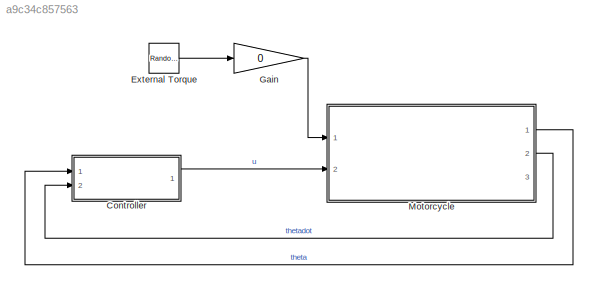
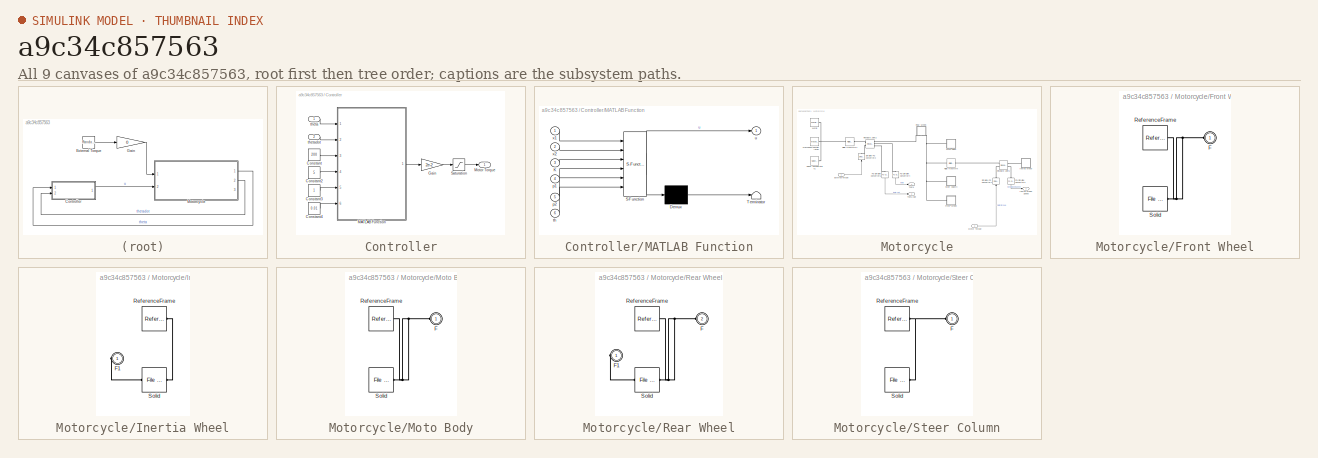
[diagram: thumbnail index - all 9 canvases of the model, root first then tree order]
MODEL slx_a9c34c857563
KIND model
CONFIG AbsTol = auto
CONFIG EnableMultiTasking = on
CONFIG FixedStep = auto
CONFIG MaxStep = 0.001
CONFIG MinStep = auto
CONFIG PreLoadFcn = moto_cad_data\n\ntheta0 = 1;\nthetadot0 = 0;
CONFIG RelTol = 1e-3
CONFIG SampleTimeConstraint = Unconstrained
CONFIG SolverName = ode45
CONFIG StartTime = 0.0
CONFIG StopTime = 10
BLOCK [SubSystem] Controller
  Ports = [2, 1]
  RequestExecContextInheritance = off
BLOCK [Constant] Controller/Constant
  Value = 200
BLOCK [Constant] Controller/Constant2
  Value = 5
BLOCK [Constant] Controller/Constant3
  NameLocation = right
BLOCK [Constant] Controller/Constant4
  Value = 0.01
BLOCK [Gain] Controller/Gain
  Gain = 2e-2
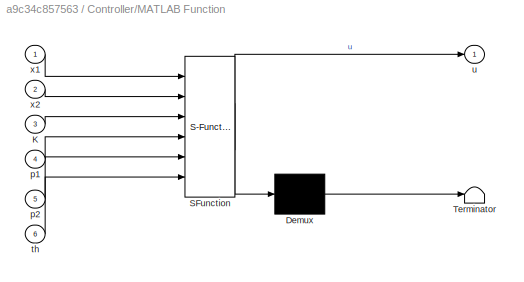
BLOCK [SubSystem] Controller/MATLAB Function
  ErrorFcn = Stateflow.Translate.translate
  PermitHierarchicalResolution = ExplicitOnly
  Ports = [6, 1]
  RequestExecContextInheritance = off
  SFBlockType = MATLAB Function
  TreatAsAtomicUnit = on
BLOCK [Demux] Controller/MATLAB Function/ Demux 
  Outputs = 1
  Ports = [1, 1]
BLOCK [S-Function] Controller/MATLAB Function/ SFunction 
  EnableBusSupport = on
  FunctionName = sf_sfun
  PortCounts = [6 2]
  Ports = [6, 2]
  SFcnIsStateOwnerBlock = off
  SFunctionDeploymentMode = off
  Tag = Stateflow S-Function 2
BLOCK [Terminator] Controller/MATLAB Function/ Terminator 
BLOCK [Inport] Controller/MATLAB Function/K
  Port = 3
BLOCK [Inport] Controller/MATLAB Function/p1
  Port = 4
BLOCK [Inport] Controller/MATLAB Function/p2
  Port = 5
BLOCK [Inport] Controller/MATLAB Function/th
  Port = 6
BLOCK [Outport] Controller/MATLAB Function/u
BLOCK [Inport] Controller/MATLAB Function/x1
BLOCK [Inport] Controller/MATLAB Function/x2
  Port = 2
BLOCK [Outport] Controller/Motor Torque
BLOCK [Saturate] Controller/Saturation
  LowerLimit = -0.7
  UpperLimit = 0.7
BLOCK [Inport] Controller/theta
BLOCK [Inport] Controller/thetadot
  Port = 2
BLOCK [RandomNumber] External Torque
  SampleTime = 0.1
BLOCK [Gain] Gain 
  Gain = 0
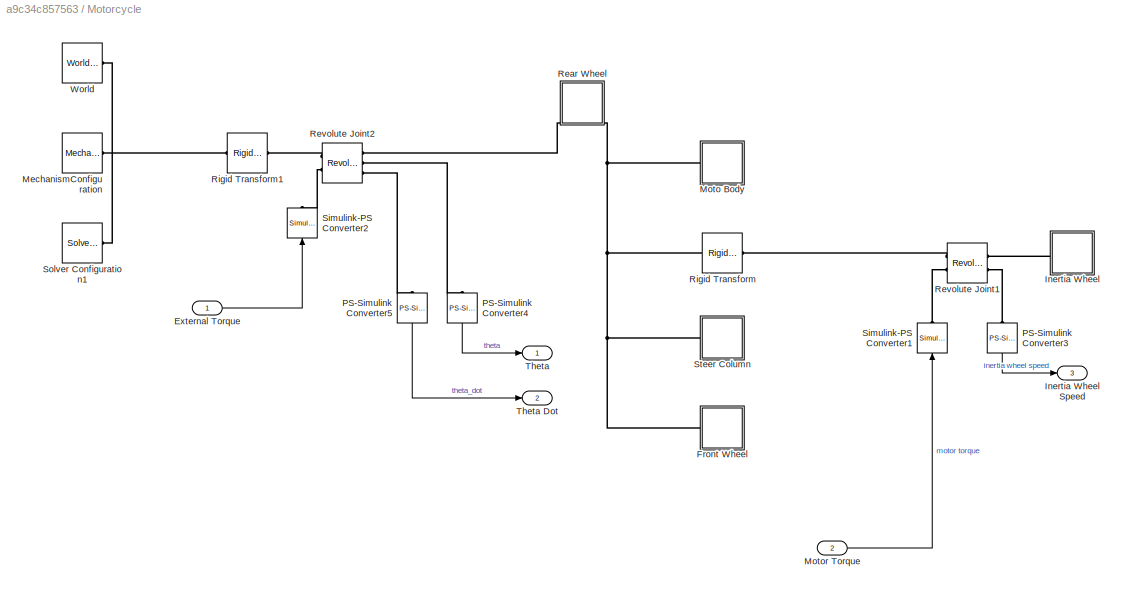
BLOCK [SubSystem] Motorcycle
  Ports = [2, 3]
  RequestExecContextInheritance = off
BLOCK [Inport] Motorcycle/External Torque
BLOCK [SubSystem] Motorcycle/Front Wheel
  Ports = [0, 0, 0, 0, 0, 1]
  RequestExecContextInheritance = off
BLOCK [PMIOPort] Motorcycle/Front Wheel/F
  Side = Left
BLOCK [Reference] Motorcycle/Front Wheel/ReferenceFrame  REF=sm_lib/Frames and
Transforms/Reference
Frame
  Ports = [0, 0, 0, 0, 0, 0, 1]
  SourceBlock = sm_lib/Frames and\nTransforms/Reference\nFrame
  SourceProductBaseCode = MS
  SourceType = Reference\nFrame
BLOCK [Reference] Motorcycle/Front Wheel/Solid  REF=sm_lib/Body Elements/File Solid
  Ports = [0, 0, 0, 0, 0, 0, 1]
  SourceBlock = sm_lib/Body Elements/File Solid
  SourceProductBaseCode = MS
  SourceType = File Solid
BLOCK [SubSystem] Motorcycle/Inertia Wheel
  Ports = [0, 0, 0, 0, 0, 1]
  RequestExecContextInheritance = off
BLOCK [Outport] Motorcycle/Inertia Wheel Speed
  Port = 3
  VectorParamsAs1DForOutWhenUnconnected = off
BLOCK [PMIOPort] Motorcycle/Inertia Wheel/F1
  Side = Left
BLOCK [Reference] Motorcycle/Inertia Wheel/ReferenceFrame  REF=sm_lib/Frames and
Transforms/Reference
Frame
  Ports = [0, 0, 0, 0, 0, 0, 1]
  SourceBlock = sm_lib/Frames and\nTransforms/Reference\nFrame
  SourceProductBaseCode = MS
  SourceType = Reference\nFrame
BLOCK [Reference] Motorcycle/Inertia Wheel/Solid  REF=sm_lib/Body Elements/File Solid
  Ports = [0, 0, 0, 0, 0, 1, 1]
  SourceBlock = sm_lib/Body Elements/File Solid
  SourceProductBaseCode = MS
  SourceType = File Solid
BLOCK [Reference] Motorcycle/MechanismConfiguration  REF=sm_lib/Utilities/Mechanism
Configuration
  Ports = [0, 0, 0, 0, 0, 0, 1]
  SourceBlock = sm_lib/Utilities/Mechanism\nConfiguration
  SourceProductBaseCode = MS
  SourceType = Mechanism\nConfiguration
BLOCK [SubSystem] Motorcycle/Moto Body
  Ports = [0, 0, 0, 0, 0, 1]
  RequestExecContextInheritance = off
BLOCK [PMIOPort] Motorcycle/Moto Body/F
  Side = Left
BLOCK [Reference] Motorcycle/Moto Body/ReferenceFrame  REF=sm_lib/Frames and
Transforms/Reference
Frame
  Ports = [0, 0, 0, 0, 0, 0, 1]
  SourceBlock = sm_lib/Frames and\nTransforms/Reference\nFrame
  SourceProductBaseCode = MS
  SourceType = Reference\nFrame
BLOCK [Reference] Motorcycle/Moto Body/Solid  REF=sm_lib/Body Elements/File Solid
  Ports = [0, 0, 0, 0, 0, 0, 1]
  SourceBlock = sm_lib/Body Elements/File Solid
  SourceProductBaseCode = MS
  SourceType = File Solid
BLOCK [Inport] Motorcycle/Motor Torque
  Port = 2
BLOCK [Reference] Motorcycle/PS-Simulink Converter3  REF=nesl_utility/PS-Simulink
Converter
  NameLocation = right
  Ports = [0, 1, 0, 0, 0, 1]
  SourceBlock = nesl_utility/PS-Simulink\nConverter
  SourceProductBaseCode = PW,SS
  SourceType = PS-Simulink\nConverter
BLOCK [Reference] Motorcycle/PS-Simulink Converter4  REF=nesl_utility/PS-Simulink
Converter
  NameLocation = right
  Ports = [0, 1, 0, 0, 0, 1]
  SourceBlock = nesl_utility/PS-Simulink\nConverter
  SourceProductBaseCode = PW,SS
  SourceType = PS-Simulink\nConverter
BLOCK [Reference] Motorcycle/PS-Simulink Converter5  REF=nesl_utility/PS-Simulink
Converter
  NameLocation = left
  Ports = [0, 1, 0, 0, 0, 1]
  SourceBlock = nesl_utility/PS-Simulink\nConverter
  SourceProductBaseCode = PW,SS
  SourceType = PS-Simulink\nConverter
BLOCK [SubSystem] Motorcycle/Rear Wheel
  NameLocation = right
  Ports = [0, 0, 0, 0, 0, 2]
  RequestExecContextInheritance = off
BLOCK [PMIOPort] Motorcycle/Rear Wheel/F
  Port = 2
  Side = Left
BLOCK [PMIOPort] Motorcycle/Rear Wheel/F1
  Side = Left
BLOCK [Reference] Motorcycle/Rear Wheel/ReferenceFrame  REF=sm_lib/Frames and
Transforms/Reference
Frame
  Ports = [0, 0, 0, 0, 0, 0, 1]
  SourceBlock = sm_lib/Frames and\nTransforms/Reference\nFrame
  SourceProductBaseCode = MS
  SourceType = Reference\nFrame
BLOCK [Reference] Motorcycle/Rear Wheel/Solid  REF=sm_lib/Body Elements/File Solid
  Ports = [0, 0, 0, 0, 0, 1, 1]
  SourceBlock = sm_lib/Body Elements/File Solid
  SourceProductBaseCode = MS
  SourceType = File Solid
BLOCK [Reference] Motorcycle/Revolute Joint1  REF=sm_lib/Joints/Revolute Joint
  Ports = [0, 0, 0, 0, 0, 2, 2]
  SourceBlock = sm_lib/Joints/Revolute Joint
  SourceProductBaseCode = MS
  SourceType = Revolute Joint
BLOCK [Reference] Motorcycle/Revolute Joint2  REF=sm_lib/Joints/Revolute Joint
  Ports = [0, 0, 0, 0, 0, 2, 3]
  SourceBlock = sm_lib/Joints/Revolute Joint
  SourceProductBaseCode = MS
  SourceType = Revolute Joint
BLOCK [Reference] Motorcycle/Rigid Transform  REF=sm_lib/Frames and
Transforms/Rigid
Transform
  Ports = [0, 0, 0, 0, 0, 1, 1]
  SourceBlock = sm_lib/Frames and\nTransforms/Rigid\nTransform
  SourceProductBaseCode = MS
  SourceType = Rigid\nTransform
BLOCK [Reference] Motorcycle/Rigid Transform1  REF=sm_lib/Frames and
Transforms/Rigid
Transform
  Ports = [0, 0, 0, 0, 0, 1, 1]
  SourceBlock = sm_lib/Frames and\nTransforms/Rigid\nTransform
  SourceProductBaseCode = MS
  SourceType = Rigid\nTransform
BLOCK [Reference] Motorcycle/Simulink-PS Converter1  REF=nesl_utility/Simulink-PS
Converter
  NameLocation = right
  Ports = [1, 0, 0, 0, 0, 0, 1]
  SourceBlock = nesl_utility/Simulink-PS\nConverter
  SourceProductBaseCode = PW,SS
  SourceType = Simulink-PS\nConverter
BLOCK [Reference] Motorcycle/Simulink-PS Converter2  REF=nesl_utility/Simulink-PS
Converter
  NameLocation = right
  Ports = [1, 0, 0, 0, 0, 0, 1]
  SourceBlock = nesl_utility/Simulink-PS\nConverter
  SourceProductBaseCode = PW,SS
  SourceType = Simulink-PS\nConverter
BLOCK [Reference] Motorcycle/Solver Configuration1  REF=nesl_utility/Solver
Configuration
  Ports = [0, 0, 0, 0, 0, 0, 1]
  SourceBlock = nesl_utility/Solver\nConfiguration
  SourceProductBaseCode = PW,SS
  SourceType = Solver\nConfiguration
BLOCK [SubSystem] Motorcycle/Steer Column
  Ports = [0, 0, 0, 0, 0, 1]
  RequestExecContextInheritance = off
BLOCK [PMIOPort] Motorcycle/Steer Column/F
  Side = Left
BLOCK [Reference] Motorcycle/Steer Column/ReferenceFrame  REF=sm_lib/Frames and
Transforms/Reference
Frame
  Ports = [0, 0, 0, 0, 0, 0, 1]
  SourceBlock = sm_lib/Frames and\nTransforms/Reference\nFrame
  SourceProductBaseCode = MS
  SourceType = Reference\nFrame
BLOCK [Reference] Motorcycle/Steer Column/Solid  REF=sm_lib/Body Elements/File Solid
  Ports = [0, 0, 0, 0, 0, 0, 1]
  SourceBlock = sm_lib/Body Elements/File Solid
  SourceProductBaseCode = MS
  SourceType = File Solid
BLOCK [Outport] Motorcycle/Theta
  VectorParamsAs1DForOutWhenUnconnected = off
BLOCK [Outport] Motorcycle/Theta Dot
  Port = 2
  VectorParamsAs1DForOutWhenUnconnected = off
BLOCK [Reference] Motorcycle/World  REF=sm_lib/Frames and
Transforms/World Frame
  Ports = [0, 0, 0, 0, 0, 0, 1]
  SourceBlock = sm_lib/Frames and\nTransforms/World Frame
  SourceProductBaseCode = MS
  SourceType = World Frame
LINE Controller/Constant2:1 -> Controller/MATLAB Function:4
LINE Controller/Constant3:1 -> Controller/MATLAB Function:5
LINE Controller/Constant4:1 -> Controller/MATLAB Function:6
LINE Controller/Constant:1 -> Controller/MATLAB Function:3
LINE Controller/Gain:1 -> Controller/Saturation:1
LINE Controller/MATLAB Function:1 -> Controller/Gain:1
LINE Controller/Saturation:1 -> Controller/Motor Torque:1
LINE Controller/theta:1 -> Controller/MATLAB Function:1
LINE Controller/thetadot:1 -> Controller/MATLAB Function:2
LINE Controller:1 -> Motorcycle:2
LINE External Torque:1 -> Gain :1
LINE Gain :1 -> Motorcycle:1
LINE Motorcycle/External Torque:1 -> Motorcycle/Simulink-PS Converter2:1
LINE Motorcycle/Motor Torque:1 -> Motorcycle/Simulink-PS Converter1:1
LINE Motorcycle/PS-Simulink Converter3:1 -> Motorcycle/Inertia Wheel Speed:1
LINE Motorcycle/PS-Simulink Converter4:1 -> Motorcycle/Theta:1
LINE Motorcycle/PS-Simulink Converter5:1 -> Motorcycle/Theta Dot:1
LINE Motorcycle:1 -> Controller:1
LINE Motorcycle:2 -> Controller:2
PNET net1: Motorcycle/Front Wheel/F:RConn1 -- Motorcycle/Front Wheel/ReferenceFrame:RConn1 -- Motorcycle/Front Wheel/Solid:RConn1
PNET net2: Motorcycle/Front Wheel:LConn1 -- Motorcycle/Moto Body:LConn1 -- Motorcycle/Rear Wheel:LConn2 -- Motorcycle/Rigid Transform:LConn1 -- Motorcycle/Steer Column:LConn1
PLINE Motorcycle/Inertia Wheel/F1:RConn1 -- Motorcycle/Inertia Wheel/Solid:LConn1
PLINE Motorcycle/Inertia Wheel/ReferenceFrame:RConn1 -- Motorcycle/Inertia Wheel/Solid:RConn1
PLINE Motorcycle/Inertia Wheel:LConn1 -- Motorcycle/Revolute Joint1:RConn1
PNET net3: Motorcycle/MechanismConfiguration:RConn1 -- Motorcycle/Rigid Transform1:LConn1 -- Motorcycle/Solver Configuration1:RConn1 -- Motorcycle/World:RConn1
PNET net4: Motorcycle/Moto Body/F:RConn1 -- Motorcycle/Moto Body/ReferenceFrame:RConn1 -- Motorcycle/Moto Body/Solid:RConn1
PLINE Motorcycle/PS-Simulink Converter3:LConn1 -- Motorcycle/Revolute Joint1:RConn2
PLINE Motorcycle/PS-Simulink Converter4:LConn1 -- Motorcycle/Revolute Joint2:RConn2
PLINE Motorcycle/PS-Simulink Converter5:LConn1 -- Motorcycle/Revolute Joint2:RConn3
PLINE Motorcycle/Rear Wheel/F1:RConn1 -- Motorcycle/Rear Wheel/Solid:LConn1
PNET net5: Motorcycle/Rear Wheel/F:RConn1 -- Motorcycle/Rear Wheel/ReferenceFrame:RConn1 -- Motorcycle/Rear Wheel/Solid:RConn1
PLINE Motorcycle/Rear Wheel:LConn1 -- Motorcycle/Revolute Joint2:RConn1
PLINE Motorcycle/Revolute Joint1:LConn1 -- Motorcycle/Rigid Transform:RConn1
PLINE Motorcycle/Revolute Joint1:LConn2 -- Motorcycle/Simulink-PS Converter1:RConn1
PLINE Motorcycle/Revolute Joint2:LConn1 -- Motorcycle/Rigid Transform1:RConn1
PLINE Motorcycle/Revolute Joint2:LConn2 -- Motorcycle/Simulink-PS Converter2:RConn1
PNET net6: Motorcycle/Steer Column/F:RConn1 -- Motorcycle/Steer Column/ReferenceFrame:RConn1 -- Motorcycle/Steer Column/Solid:RConn1
note: PNET lines group multi-terminal physical nets as a canonical sorted terminal list (undirected conserving connections); 2-terminal nets keep the pairwise PLINE form
CHART Controller/MATLAB Function states=1 transitions=1
  STATE_LABEL 'eML_blk_kernel()'
  STATE_LABEL 'SCRIPT:\nfunction u = SM(x1,x2,K,p1,p2,th)\nM=0.4;\nh=0.07;\ng=9.81;\nIm=M*h^2;\n\n\nsigma=p1*x1+p2*x2;\n\nif(sigma>th)\n    u =Im/(p2)*(K+p1*x2+p2*M*g*h/Im*sind(x1));\nelseif (sigma<-th)\n    u =Im/(p2)*(-K+p1*x2+p2*M*g*h/Im*sind(x1));\nelse\n    u =Im/(p2)*(p1*x2+p2*M*g*h/Im*sind(x1));\nend\n\n        '
CHART  states=0 transitions=0
